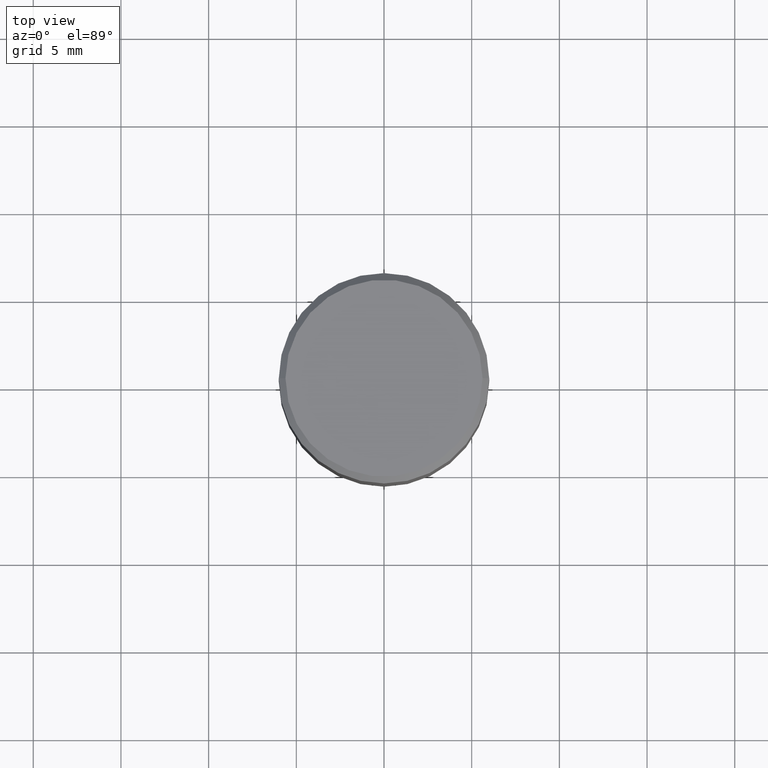
[diagram: clean part render]
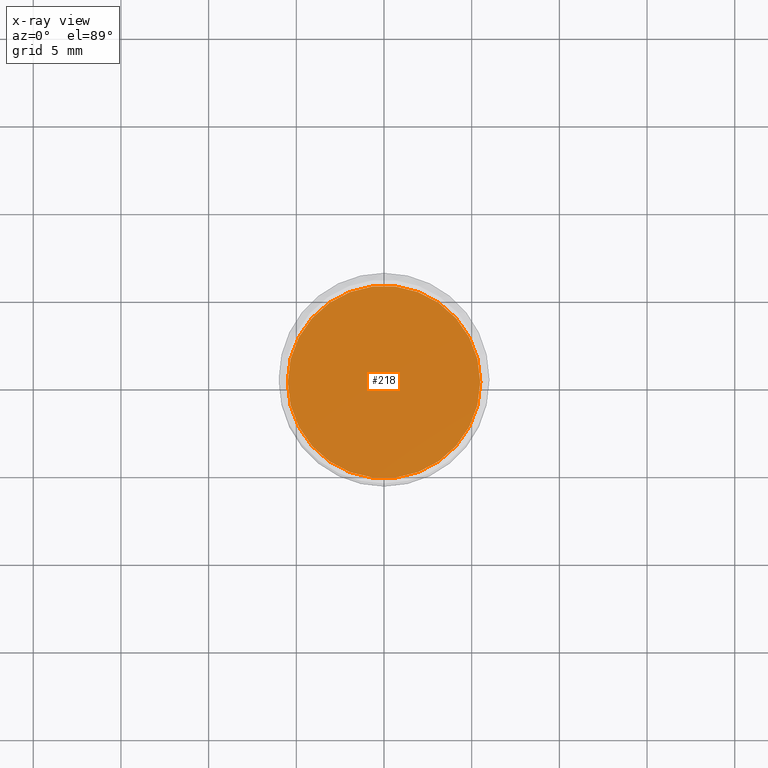
[diagram: x-ray — body ghosted, one internal face saturated and labeled with its STEP entity id]
A machine part, top view, then the same camera in x-ray: the body is ghosted and one INTERNAL B-rep face — a face not visible from any outside direction — is saturated and labeled: STEP entity #218.
In plain terms, the highlighted planar face has unit normal (-0, 0, 1).
Its self-contained STEP definition (entity closure, byte-faithful):
#19 = DIRECTION ( 'NONE',  ( -2.445468806185136597E-29, 3.491481338843145583E-15, 1.000000000000000000 ) ) ;
#49 = DIRECTION ( 'NONE',  ( 1.000000000000000000, -6.982962677686267499E-15, 0.000000000000000000 ) ) ;
#51 = AXIS2_PLACEMENT_3D ( 'NONE', #452, #19, #49 ) ;
#60 = DIRECTION ( 'NONE',  ( 1.000000000000000000, -6.982962677686265922E-15, 4.876176775795935793E-29 ) ) ;
#88 = VERTEX_POINT ( 'NONE', #222 ) ;
#95 = EDGE_CURVE ( 'NONE', #88, #175, #165, .T. ) ;
#107 = ORIENTED_EDGE ( 'NONE', *, *, #95, .F. ) ;
#118 = CARTESIAN_POINT ( 'NONE',  ( 0.2160500000000000198, -3.309226012955529172E-15, -0.5157000000000001583 ) ) ;
#125 = EDGE_CURVE ( 'NONE', #175, #88, #288, .T. ) ;
#135 = AXIS2_PLACEMENT_3D ( 'NONE', #382, #453, #60 ) ;
#165 = CIRCLE ( 'NONE', #51, 0.2160500000000000198 ) ;
#175 = VERTEX_POINT ( 'NONE', #118 ) ;
#218 = ADVANCED_FACE ( 'NONE', ( #311 ), #304, .F. ) ;
#222 = CARTESIAN_POINT ( 'NONE',  ( -0.2160500000000000198, -2.627801186576033655E-16, -0.5157000000000001583 ) ) ;
#253 = AXIS2_PLACEMENT_3D ( 'NONE', #292, #412, #377 ) ;
#281 = EDGE_LOOP ( 'NONE', ( #418, #107 ) ) ;
#288 = CIRCLE ( 'NONE', #253, 0.2160500000000000198 ) ;
#292 = CARTESIAN_POINT ( 'NONE',  ( 1.261128263349675426E-29, -1.800556926441410962E-15, -0.5157000000000001583 ) ) ;
#304 = PLANE ( 'NONE',  #135 ) ;
#311 = FACE_OUTER_BOUND ( 'NONE', #281, .T. ) ;
#377 = DIRECTION ( 'NONE',  ( 1.000000000000000000, -6.982962677686267499E-15, 0.000000000000000000 ) ) ;
#382 = CARTESIAN_POINT ( 'NONE',  ( 1.261128263349675426E-29, -1.800556926441410962E-15, -0.5157000000000001583 ) ) ;
#412 = DIRECTION ( 'NONE',  ( -2.445468806185136597E-29, 3.491481338843145583E-15, 1.000000000000000000 ) ) ;
#418 = ORIENTED_EDGE ( 'NONE', *, *, #125, .F. ) ;
#452 = CARTESIAN_POINT ( 'NONE',  ( 1.261128263349675426E-29, -1.800556926441410962E-15, -0.5157000000000001583 ) ) ;
#453 = DIRECTION ( 'NONE',  ( -2.438088387897960049E-29, 3.491481338843145188E-15, 1.000000000000000000 ) ) ;